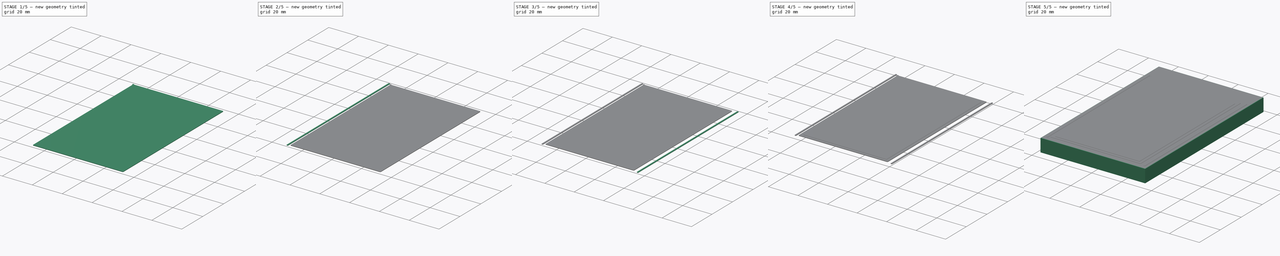
[diagram: build sequence overview — one tinted view per stage of 5, left to right]
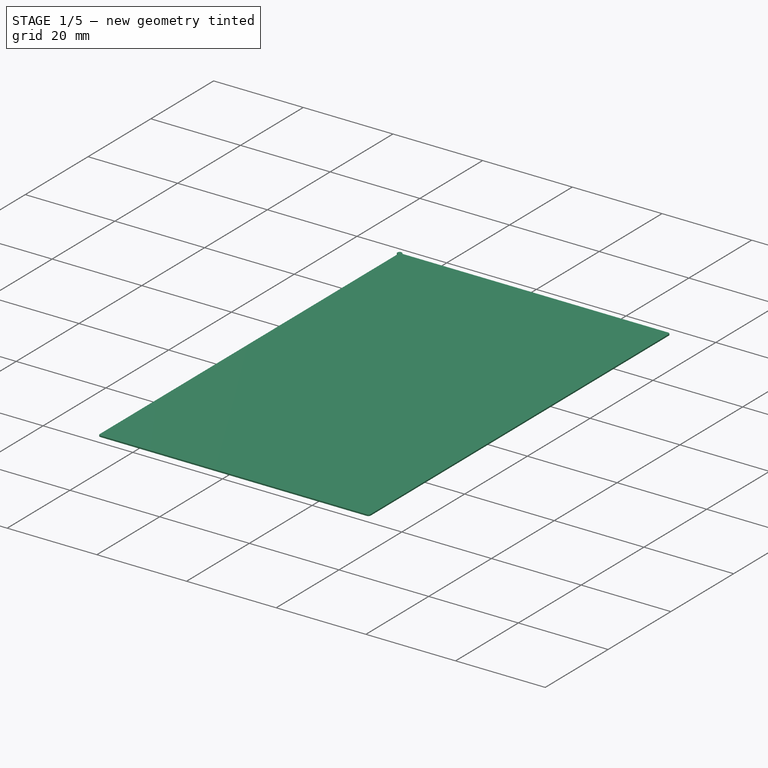
[diagram: stage 1 of 5 — iso view after this stage's code; geometry added in this stage tinted green]
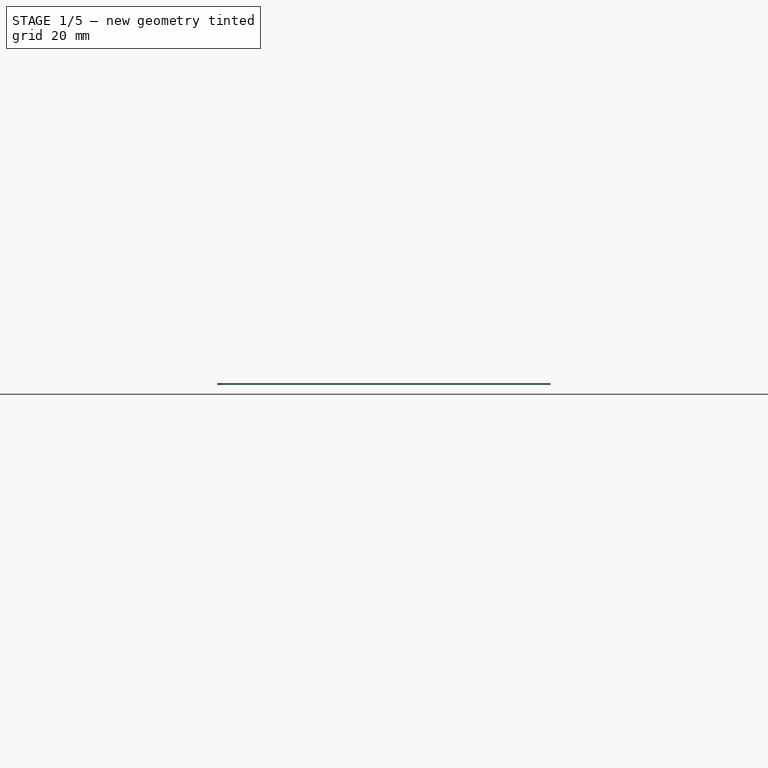
[diagram: stage 1 of 5 — front view after this stage's code; geometry added in this stage tinted green]
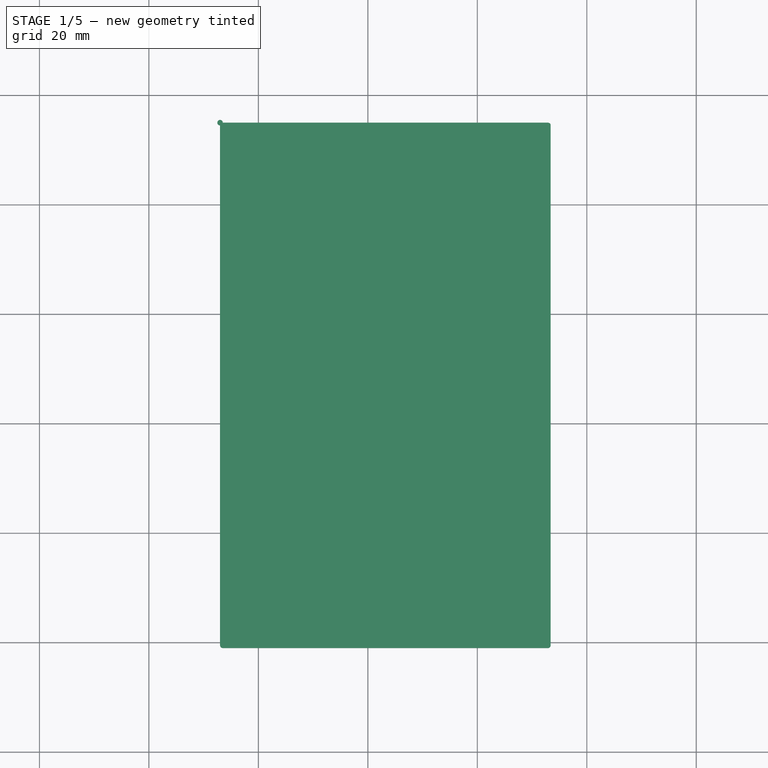
[diagram: stage 1 of 5 — top view after this stage's code; geometry added in this stage tinted green]
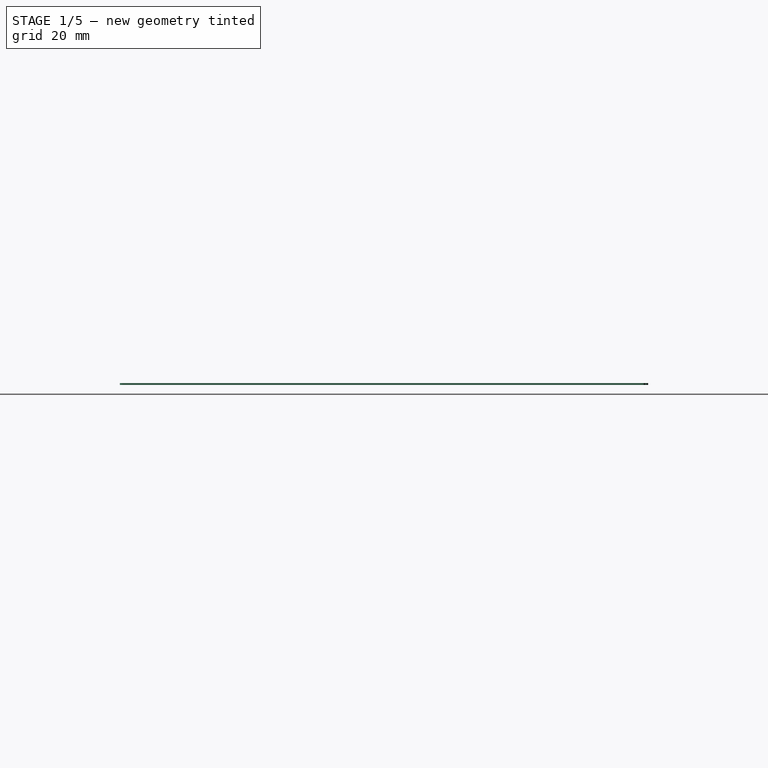
[diagram: stage 1 of 5 — right view after this stage's code; geometry added in this stage tinted green]
FCSTD DOCUMENT  (FreeCAD 0.17R11223 (Git))
Label: EA_eDIP240-XXX_3
License: All rights reserved
LicenseURL: http://en.wikipedia.org/wiki/All_rights_reserved
objects: Part::Fillet×13, Part::Box×7, Sketcher::SketchObject×1, PartDesign::Pad×1, PartDesign::Body×1, Part::FeaturePython×1, Part::Cylinder×1, Part::MultiFuse×1
note: 27 computed .brp shape members not serialized (recipe doc carries the construction recipe); baked Part::Feature solids carry a one-line shape summary decoded from their .brp

FEATURE [Part::Box] Box003  label="Kub002"
  AttacherType = Attacher::AttachEngine3D
  Height = 0.3
  Length = 60.4
  Placement = pos=(-7,-101,10.6) rot=(0,0,1;0rad)
  Width = 96
FEATURE [Part::Fillet] Fillet001
  Base = -> Box003
  Edges = 1 edges r=0.5: [Edge1]
FEATURE [Part::Fillet] Fillet002
  Base = -> Fillet001
  Edges = 1 edges r=0.5: [Edge12]
FEATURE [Part::Fillet] Fillet003
  Base = -> Fillet002
  Edges = 1 edges r=0.5: [Edge14]
FEATURE [Part::Cylinder] Cylinder
  Angle = 360
  AttacherType = Attacher::AttachEngine3D
  Height = 0.3
  Placement = pos=(-7,-5,10.6) rot=(0,0,1;0rad)
  Radius = 0.5
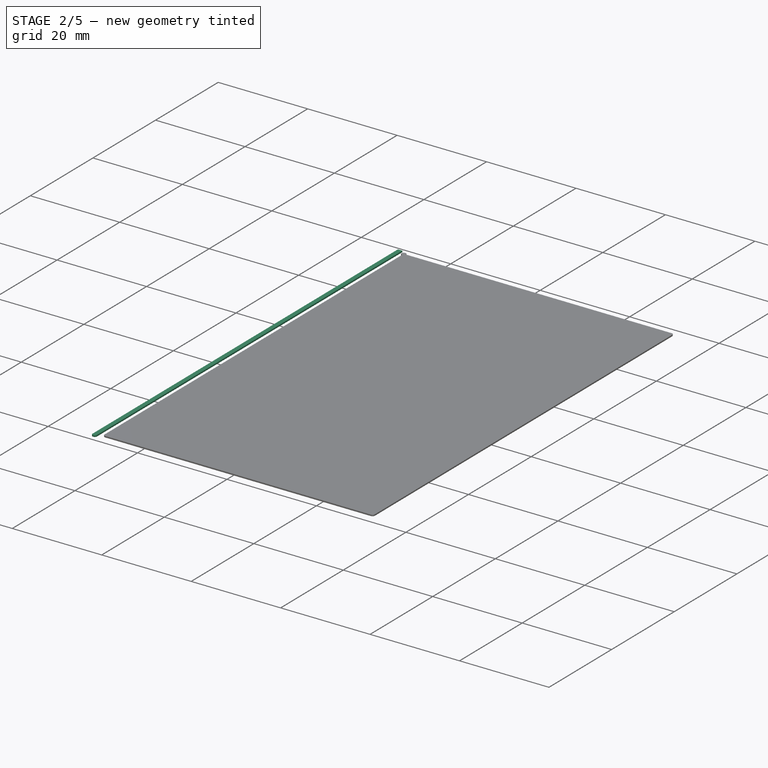
[diagram: stage 2 of 5 — iso view after this stage's code; geometry added in this stage tinted green]
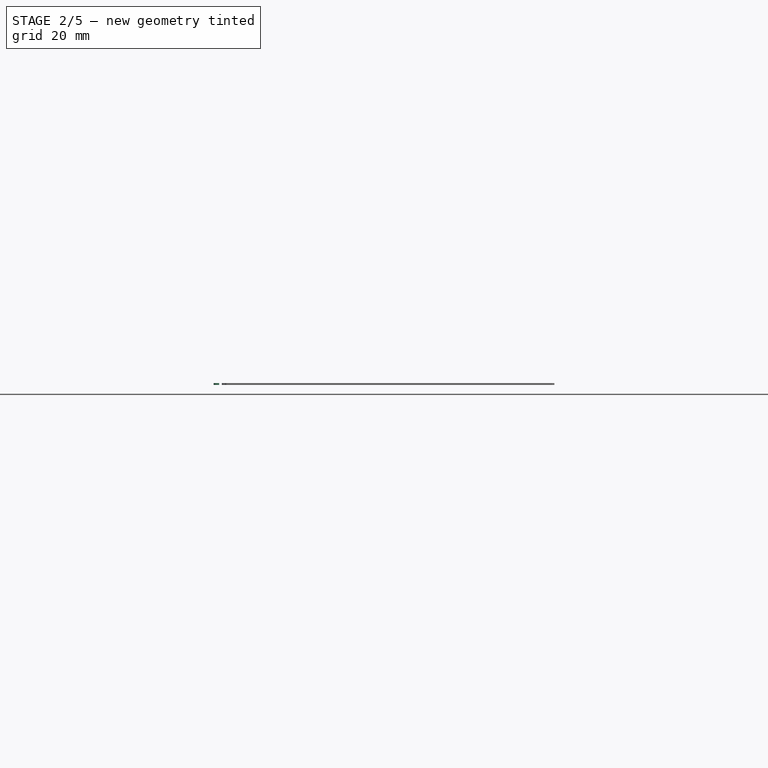
[diagram: stage 2 of 5 — front view after this stage's code; geometry added in this stage tinted green]
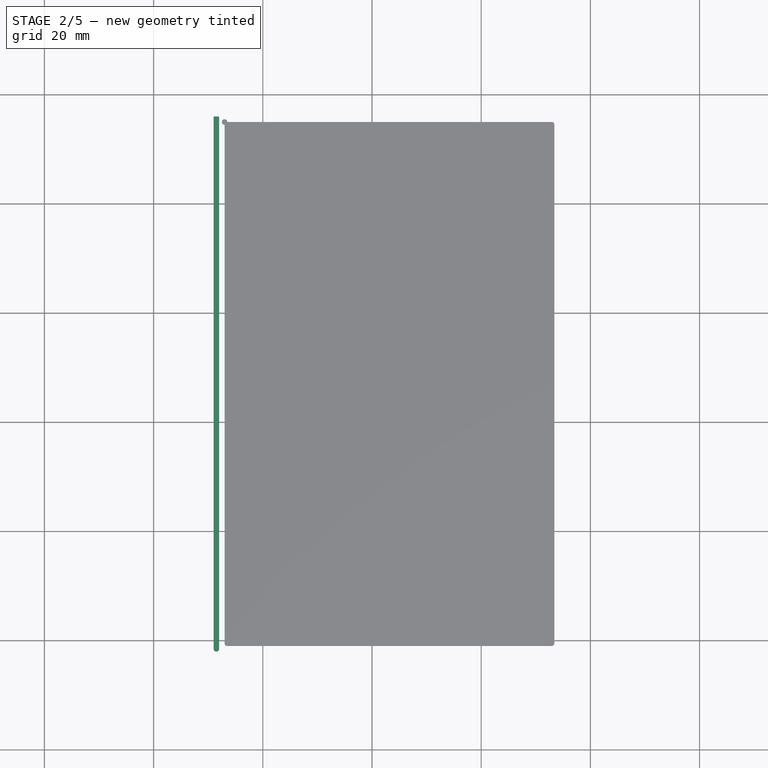
[diagram: stage 2 of 5 — top view after this stage's code; geometry added in this stage tinted green]
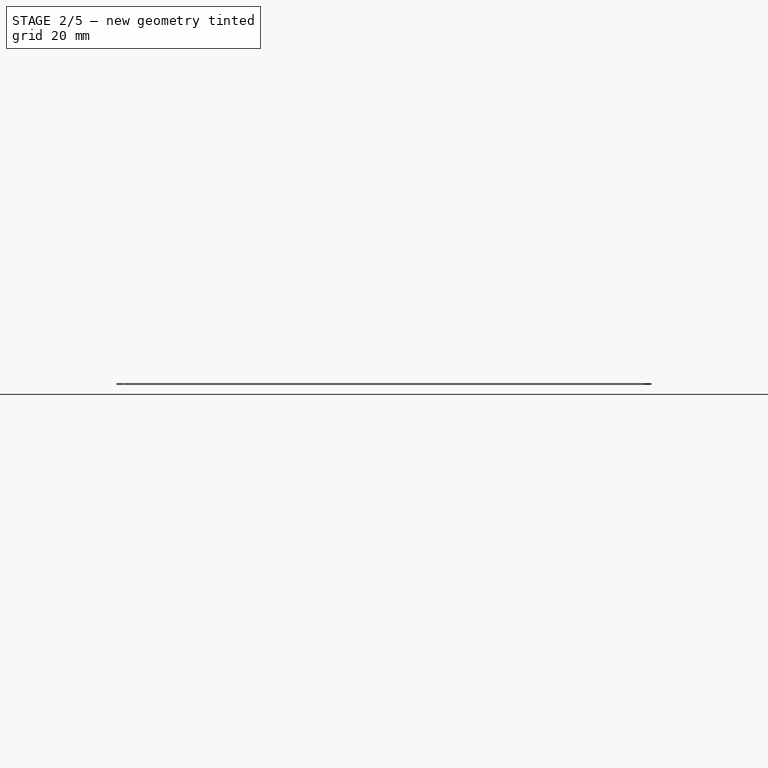
[diagram: stage 2 of 5 — right view after this stage's code; geometry added in this stage tinted green]
FEATURE [Part::Fillet] Fillet004  label="DisplayBase"
  Base = -> Fillet003
  Edges = 1 edges r=0.5: [Edge18]
FEATURE [Part::Box] Box005  label="Kub003"
  AttacherType = Attacher::AttachEngine3D
  Height = 0.3
  Length = 1
  Placement = pos=(-9,-102,10.6) rot=(0,0,1;0rad)
  Width = 98
FEATURE [Part::Fillet] Fillet005
  Base = -> Box005
  Edges = 1 edges r=0.45: [Edge1]
FEATURE [Part::Fillet] Fillet006
  Base = -> Fillet005
  Edges = 1 edges r=0.45: [Edge15]
FEATURE [Part::MultiFuse] Fusion
  Shapes = -> [Fillet004,Cylinder]
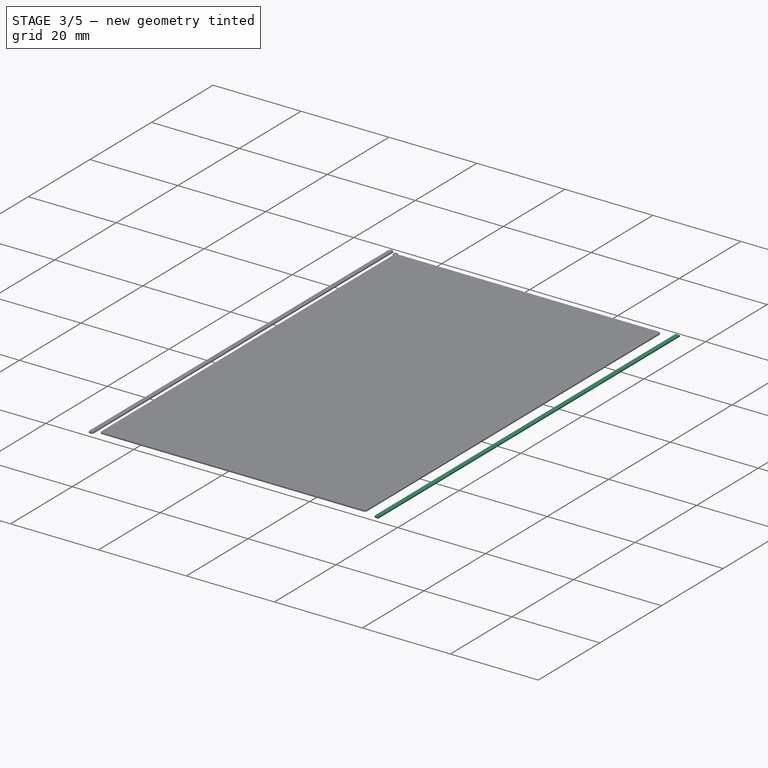
[diagram: stage 3 of 5 — iso view after this stage's code; geometry added in this stage tinted green]
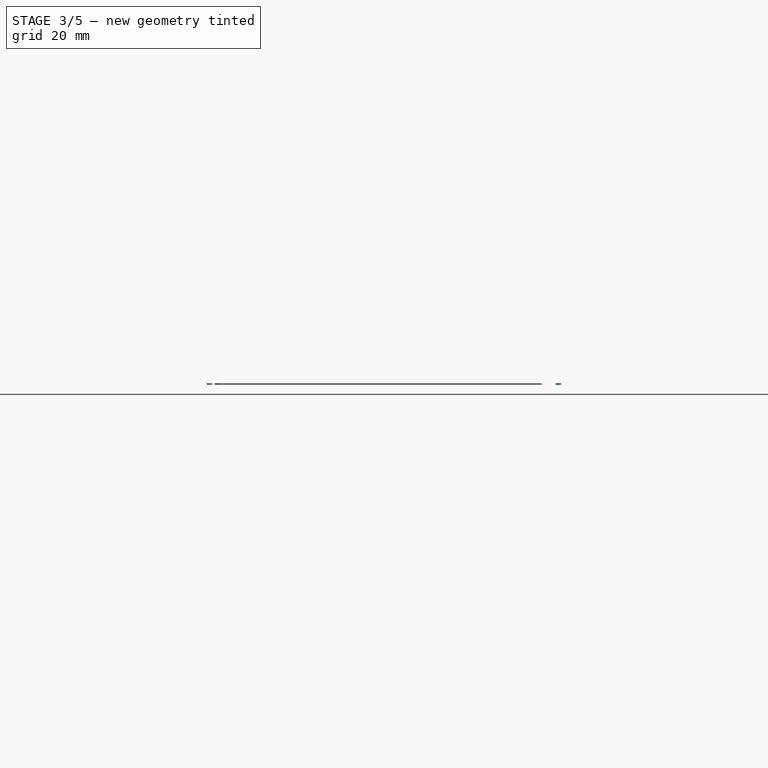
[diagram: stage 3 of 5 — front view after this stage's code; geometry added in this stage tinted green]
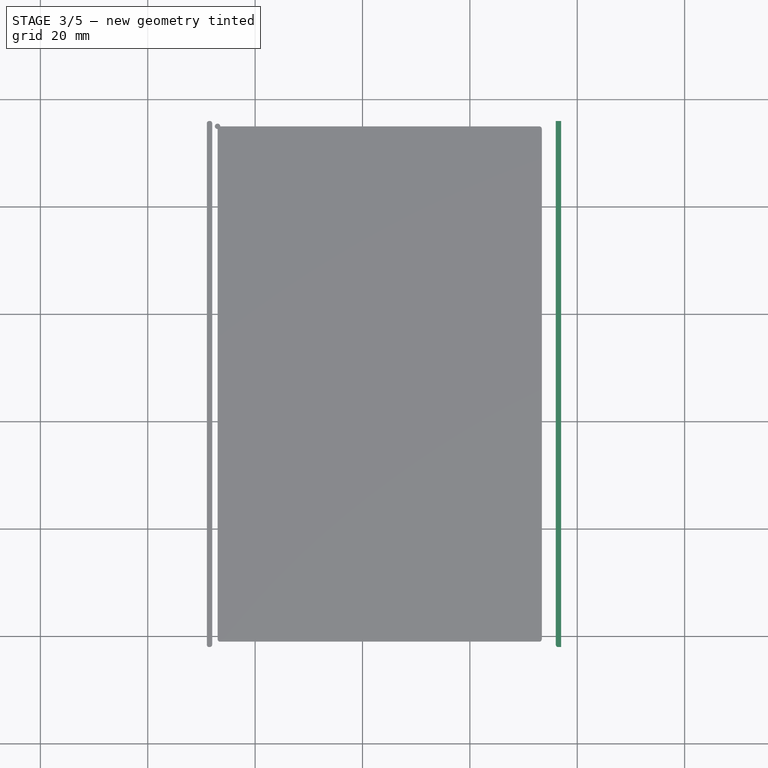
[diagram: stage 3 of 5 — top view after this stage's code; geometry added in this stage tinted green]
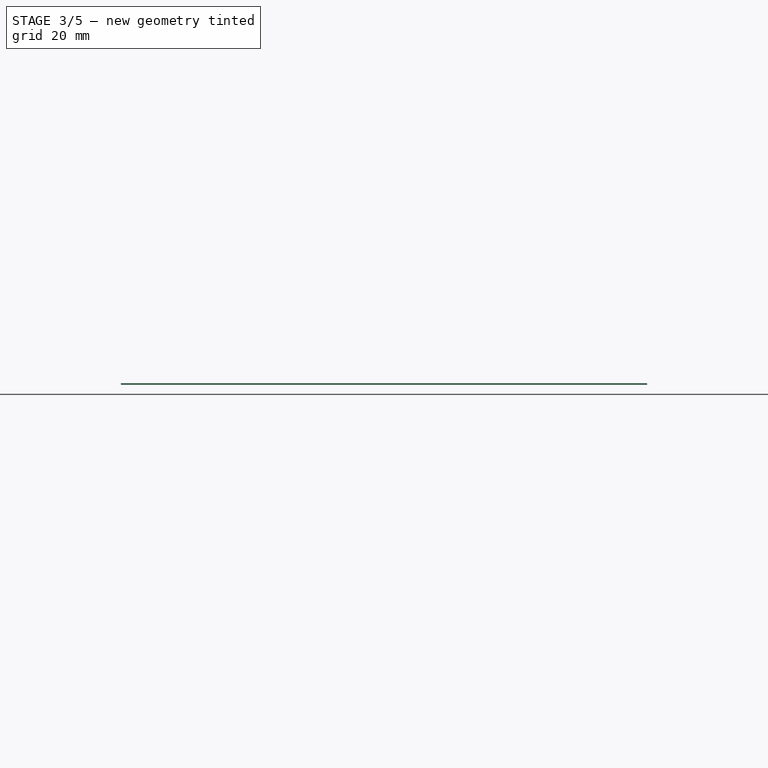
[diagram: stage 3 of 5 — right view after this stage's code; geometry added in this stage tinted green]
FEATURE [Part::Box] Box006  label="Kub004"
  AttacherType = Attacher::AttachEngine3D
  Height = 0.3
  Length = 1
  Placement = pos=(56,-102,10.6) rot=(0,0,1;0rad)
  Width = 98
FEATURE [Part::Fillet] Fillet007
  Base = -> Box006
  Edges = 1 edges r=0.45: [Edge1]
FEATURE [Part::Fillet] Fillet011
  Base = -> Fillet006
  Edges = 1 edges r=0.45: [Edge14]
FEATURE [Part::Fillet] Fillet012
  Base = -> Fillet011
  Edges = 1 edges r=0.45: [Edge16]
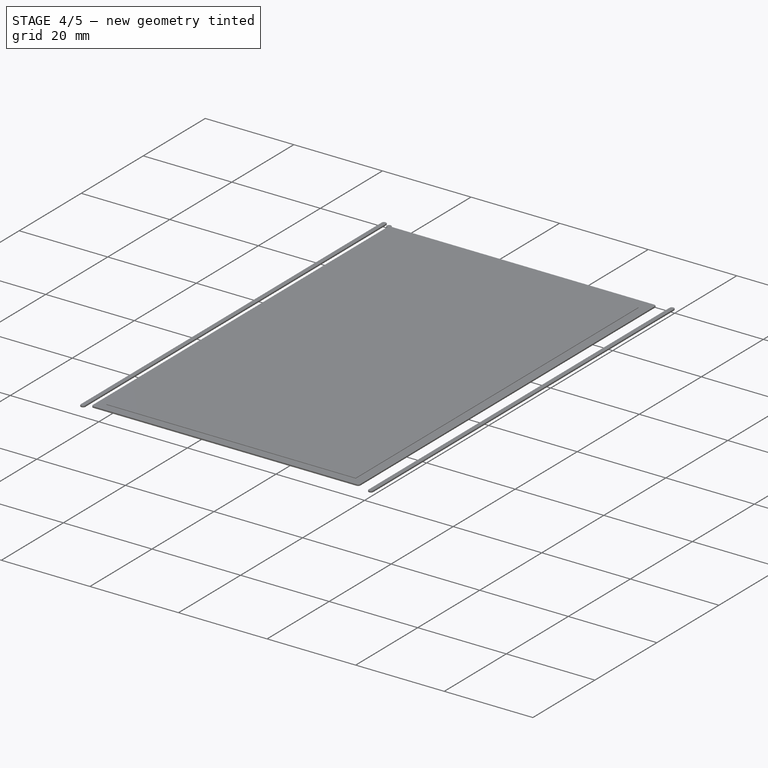
[diagram: stage 4 of 5 — iso view after this stage's code; geometry added in this stage tinted green]
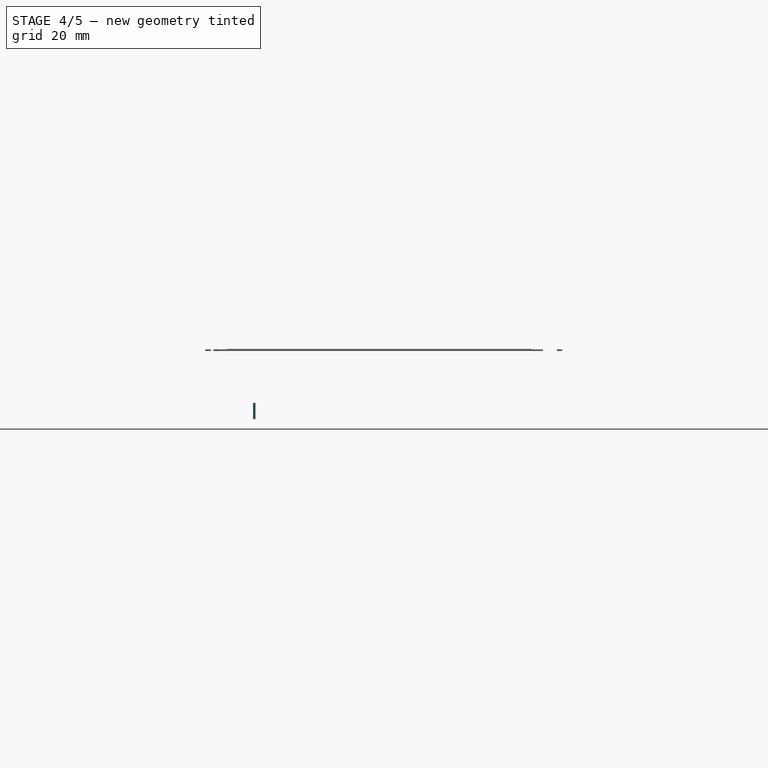
[diagram: stage 4 of 5 — front view after this stage's code; geometry added in this stage tinted green]
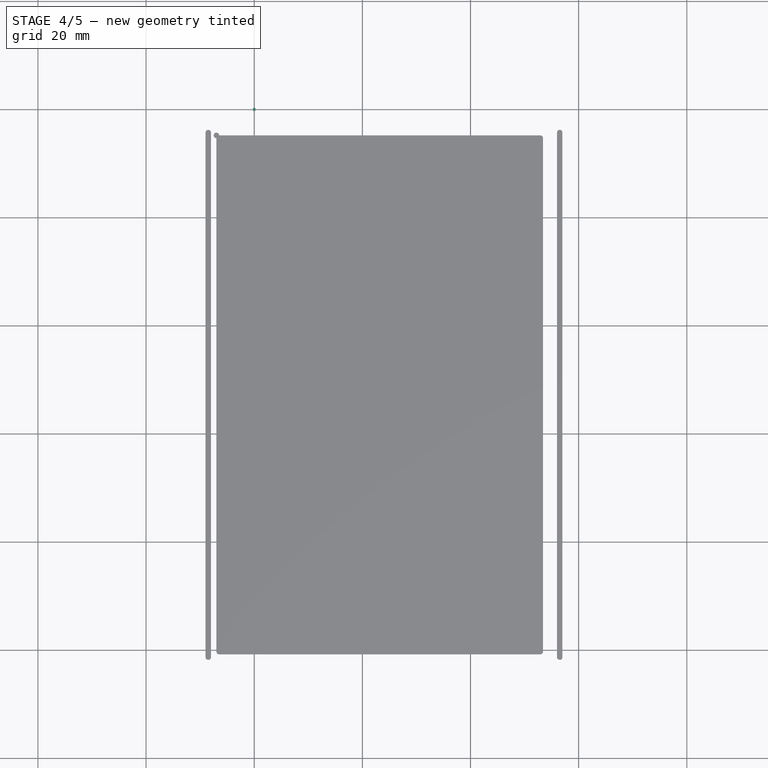
[diagram: stage 4 of 5 — top view after this stage's code; geometry added in this stage tinted green]
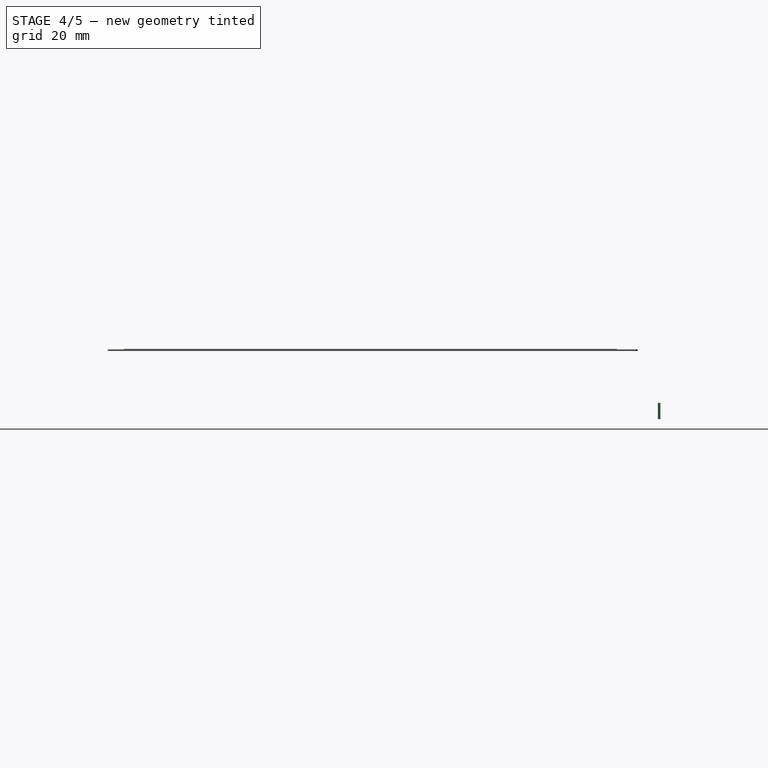
[diagram: stage 4 of 5 — right view after this stage's code; geometry added in this stage tinted green]
FEATURE [Part::Box] Box002  label="Pin"
  AttacherType = Attacher::AttachEngine3D
  Height = 3
  Length = 0.46
  Placement = pos=(-0.23,-0.23,-2) rot=(0,0,1;0rad)
  Width = 0.46
FEATURE [Part::Box] Box004  label="Display"
  AttacherType = Attacher::AttachEngine3D
  Height = 0.3
  Length = 56.3
  Placement = pos=(-5,-99,10.7) rot=(0,0,1;0rad)
  Width = 91.18
FEATURE [Part::Fillet] Fillet008
  Base = -> Fillet007
  Edges = 1 edges r=0.45: [Edge15]
FEATURE [Part::Fillet] Fillet009
  Base = -> Fillet008
  Edges = 1 edges r=0.45: [Edge14]
FEATURE [Part::Fillet] Fillet010
  Base = -> Fillet009
  Edges = 1 edges r=0.45: [Edge16]
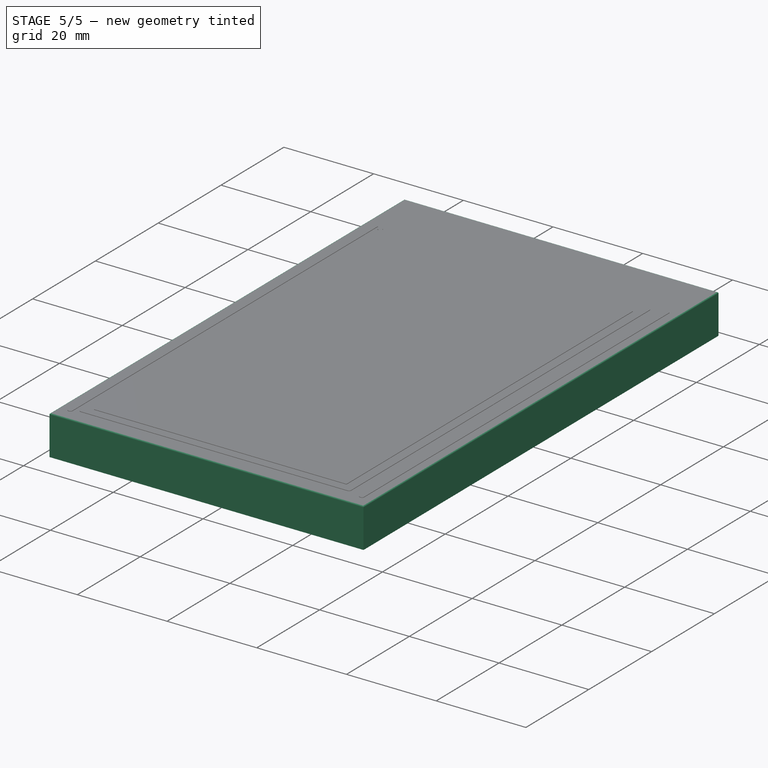
[diagram: stage 5 of 5 — iso view after this stage's code; geometry added in this stage tinted green]
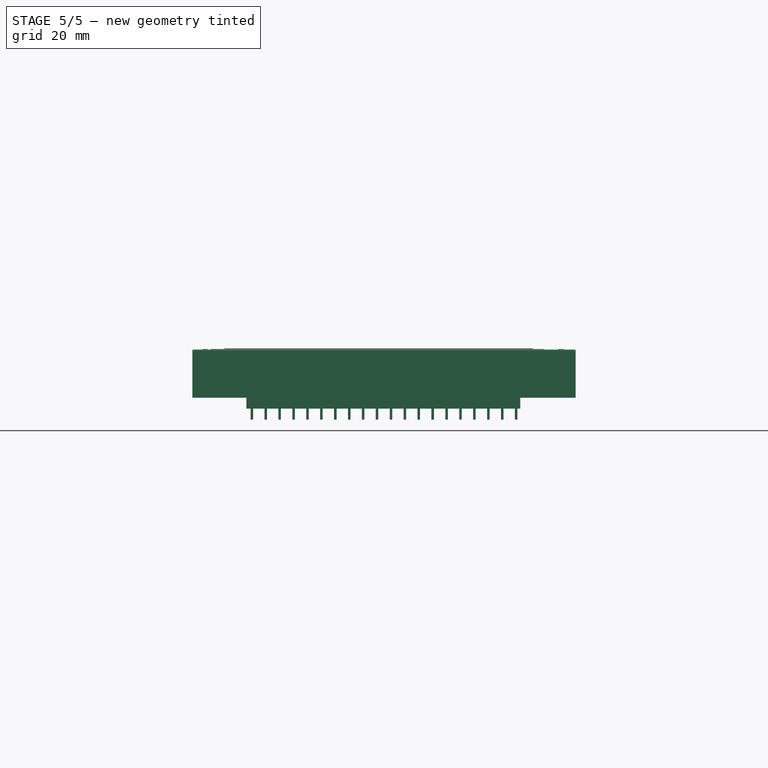
[diagram: stage 5 of 5 — front view after this stage's code; geometry added in this stage tinted green]
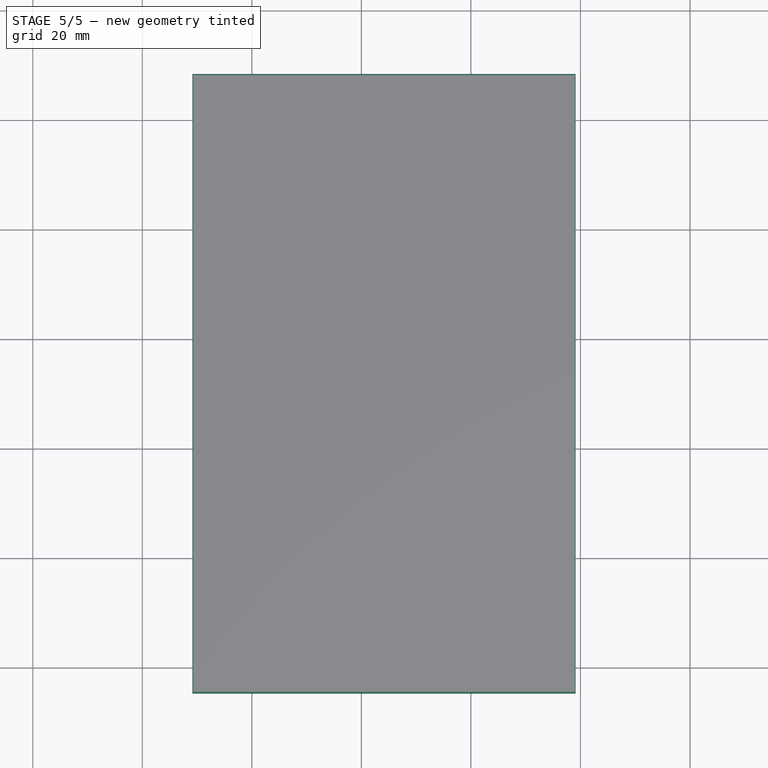
[diagram: stage 5 of 5 — top view after this stage's code; geometry added in this stage tinted green]
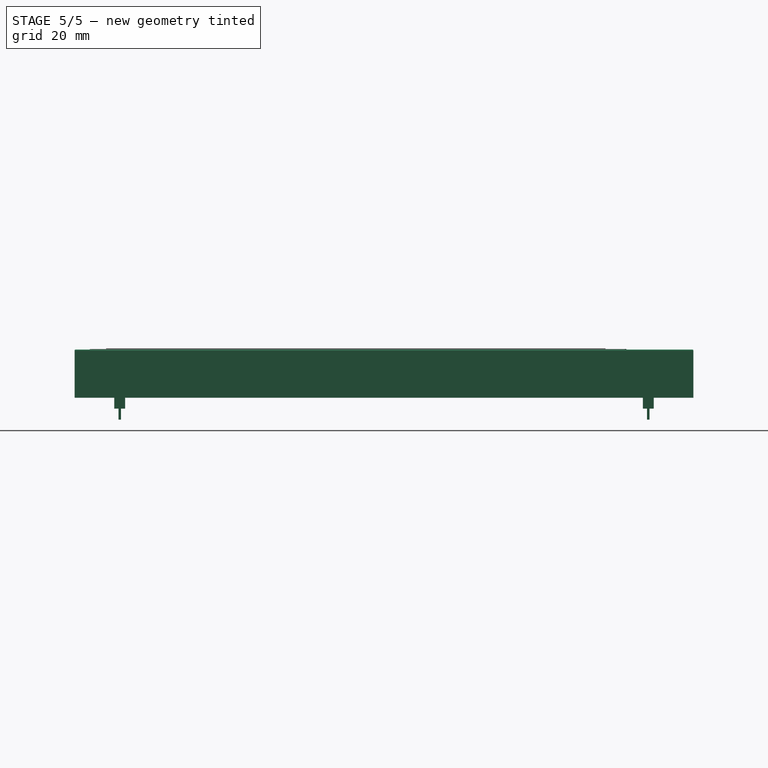
[diagram: stage 5 of 5 — right view after this stage's code; geometry added in this stage tinted green]
FEATURE [Sketcher::SketchObject] Sketch
  MapMode = 5
  Support = -> [XY_Plane]
  sketch-geometry (4):
    g0: LineSegment StartX=-10.87 StartY=8.24 StartZ=0 EndX=59.13 EndY=8.24 EndZ=0
    g1: LineSegment StartX=59.13 StartY=8.24 StartZ=0 EndX=59.13 EndY=-104.76 EndZ=0
    g2: LineSegment StartX=59.13 StartY=-104.76 StartZ=0 EndX=-10.87 EndY=-104.76 EndZ=0
    g3: LineSegment StartX=-10.87 StartY=-104.76 StartZ=0 EndX=-10.87 EndY=8.24 EndZ=0
  constraints (12):
    c: Coincident(g0,g1)
    c: Coincident(g1,g2)
    c: Coincident(g2,g3)
    c: Coincident(g3,g0)
    c: Horizontal(g0)
    c: Horizontal(g2)
    c: Vertical(g1)
    c: Vertical(g3)
    c: DistanceY(g2,g0) = 113
    c: DistanceX(g0,g0) = 70
    c: DistanceX(g0,g-1) = 10.87
    c: DistanceY(g-1,g0) = 8.24
FEATURE [PartDesign::Pad] Pad
  Length = 8.8
  Length2 = 100
  Profile = -> Sketch
  Type = 0
FEATURE [PartDesign::Body] Body
  Group = -> [Sketch,Pad]
  Origin = -> BodyOrigin
  Tip = -> Pad
FEATURE [Part::Fillet] Fillet
  Base = -> Pad
  Edges = 4 edges r=0.2: [Edge4,Edge7,Edge10,Edge12]
  Placement = pos=(0,0,2) rot=(0,0,1;0rad)
FEATURE [Part::Box] Box  label="Kub"
  AttacherType = Attacher::AttachEngine3D
  Height = 3
  Length = 50
  Placement = pos=(-1,-1,0) rot=(0,0,1;0rad)
  Width = 2
FEATURE [Part::Box] Box001  label="Kub001"
  AttacherType = Attacher::AttachEngine3D
  Height = 3
  Length = 50
  Placement = pos=(-1,-97.52,0) rot=(0,0,1;0rad)
  Width = 2
FEATURE [Part::FeaturePython] Array  label="Pins"  # Draft array (typed FeaturePython)
  Angle = 360
  ArrayType = 0
  Axis = (0,0,1)
  Base = -> Box002
  Center = (0,0,0)
  Fuse = false
  IntervalAxis = (0,0,0)
  IntervalX = (2.54,0,0)
  IntervalY = (0,-96.52,0)
  IntervalZ = (0,0,0)
  NumberPolar = 1
  NumberX = 20
  NumberY = 2
  NumberZ = 1
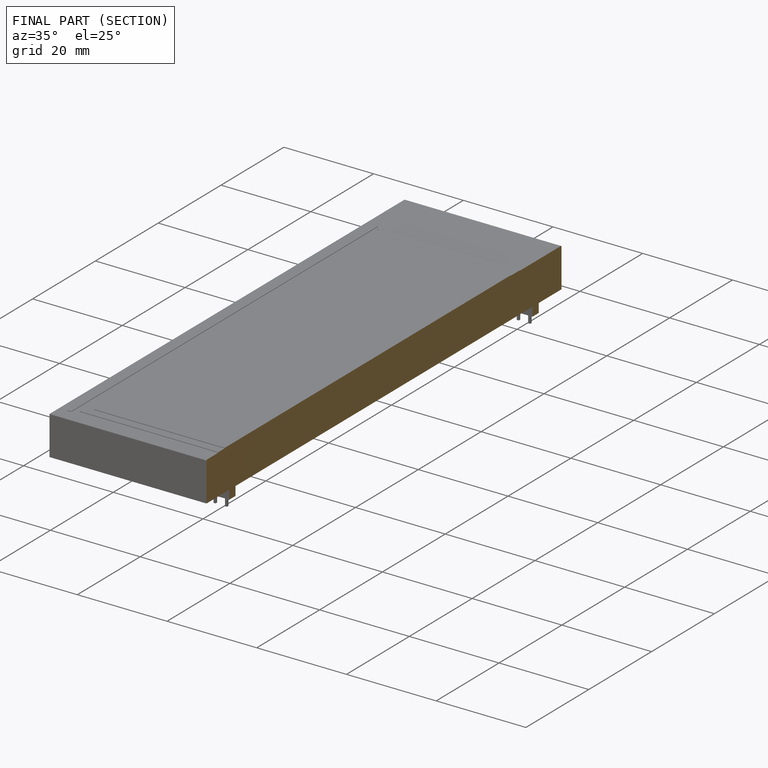
[diagram: finished part — half-section view (interior)]
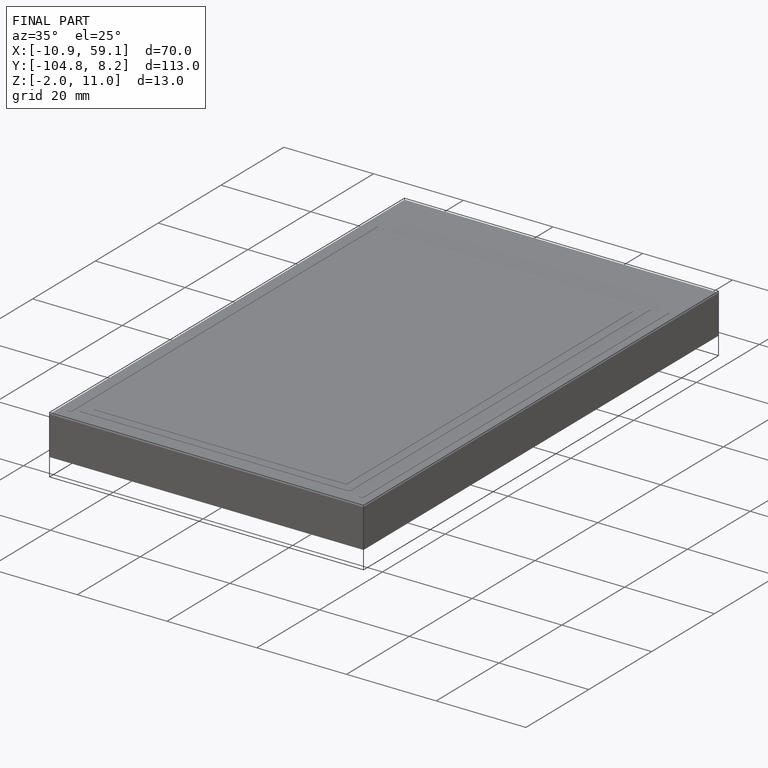
[diagram: finished part — iso view with bounding-box wireframe]
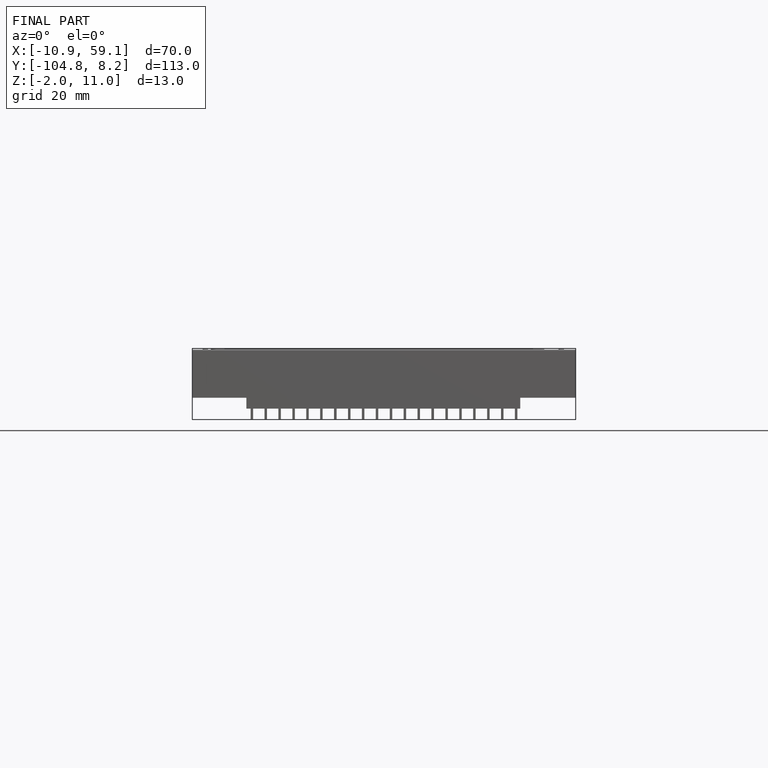
[diagram: finished part — front view with bounding-box wireframe]
